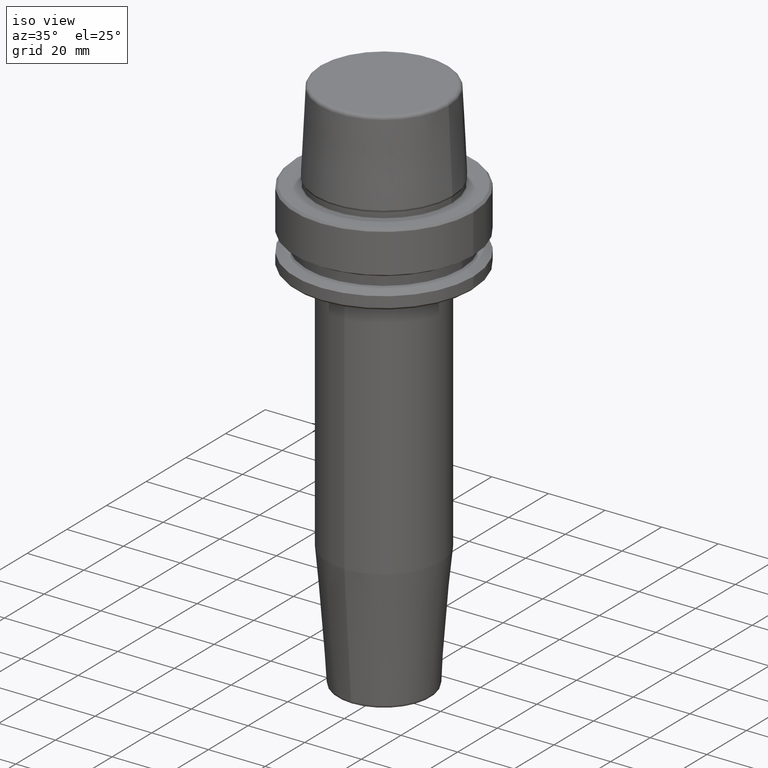
[diagram: clean part render]
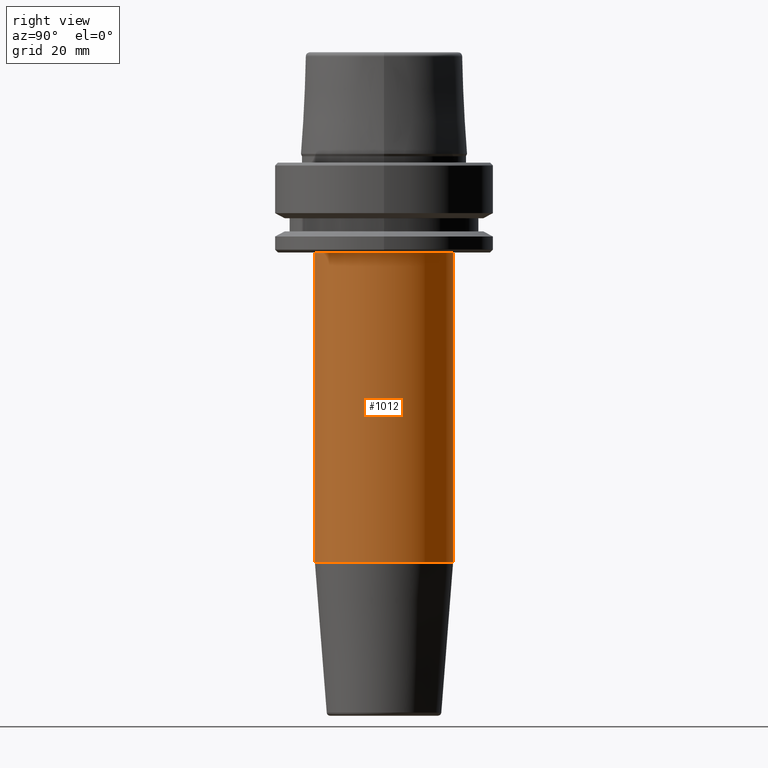
[diagram: tour spotlight — one face highlighted and labeled with its STEP entity id]
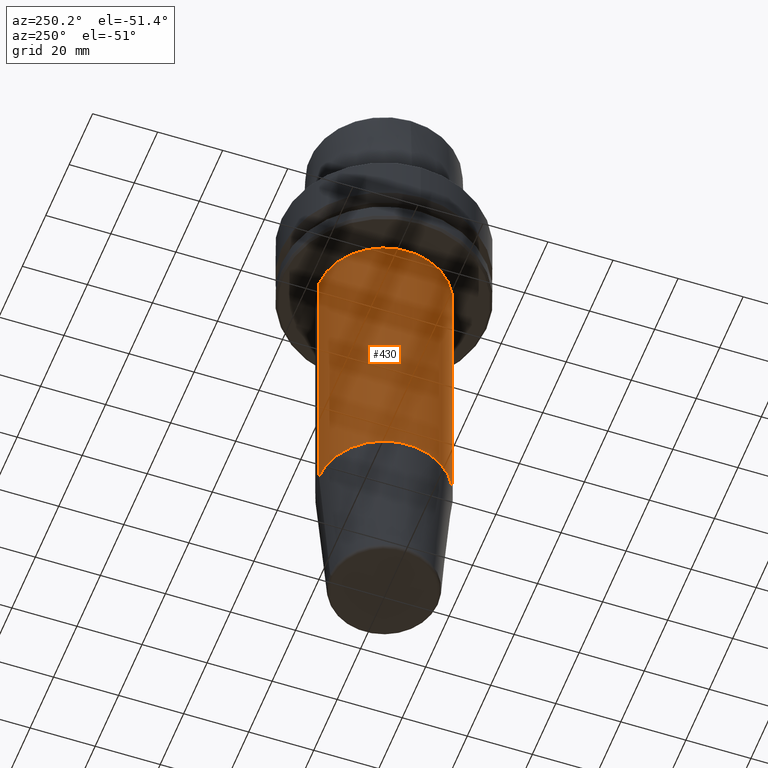
[diagram: tour spotlight — one face highlighted and labeled with its STEP entity id]
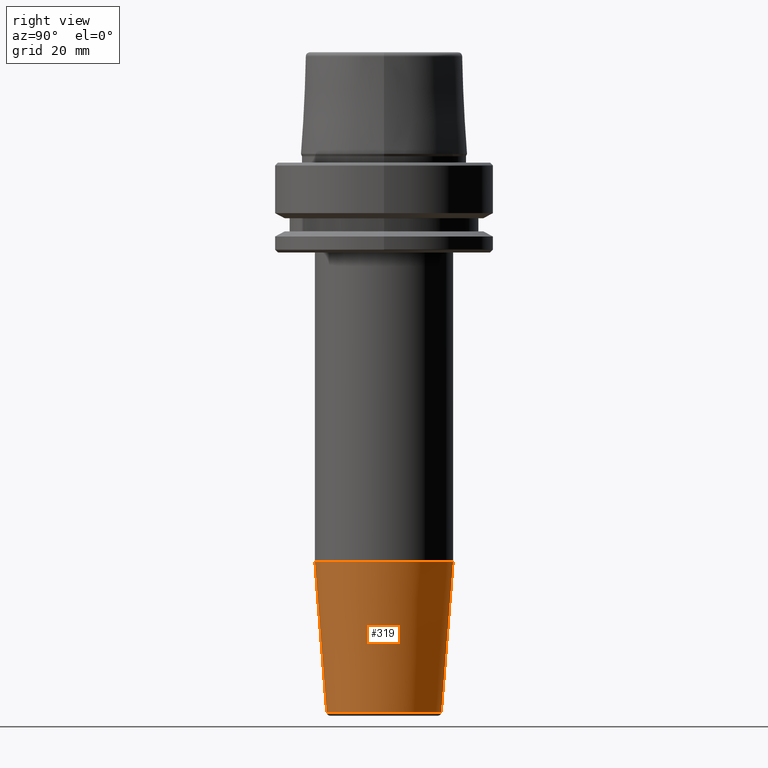
[diagram: tour spotlight — one face highlighted and labeled with its STEP entity id]
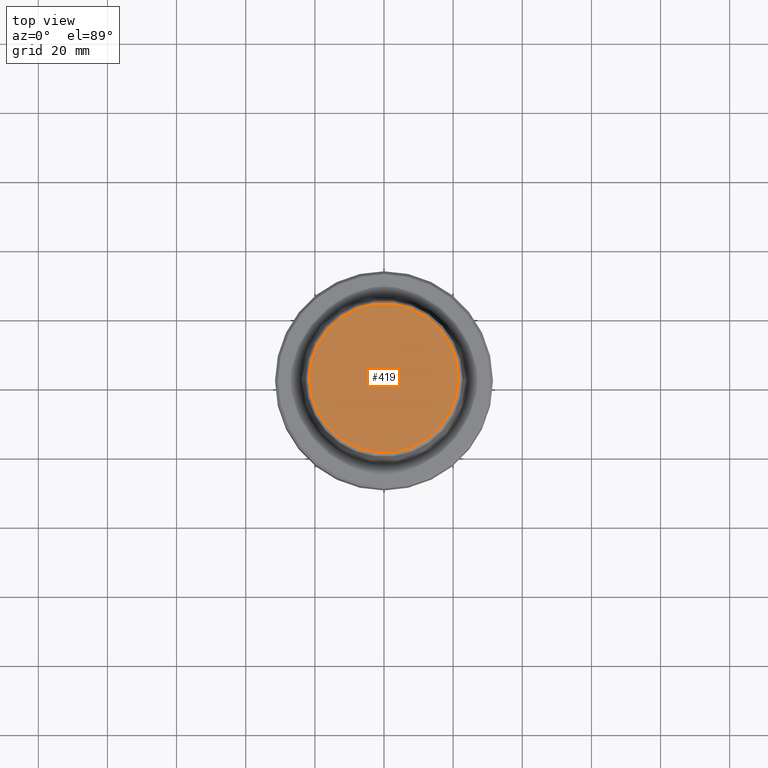
[diagram: tour spotlight — one face highlighted and labeled with its STEP entity id]
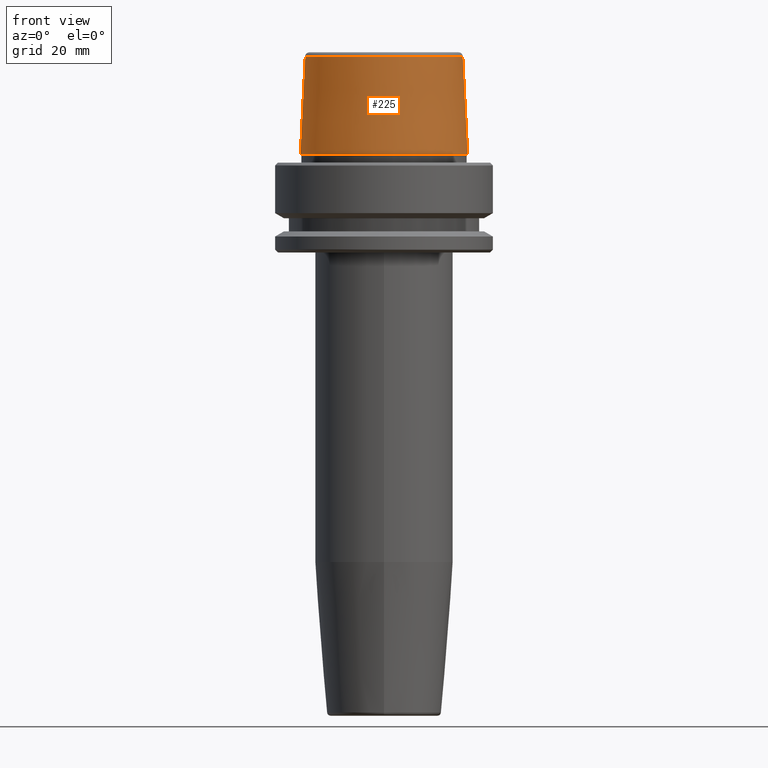
[diagram: tour spotlight — one face highlighted and labeled with its STEP entity id]
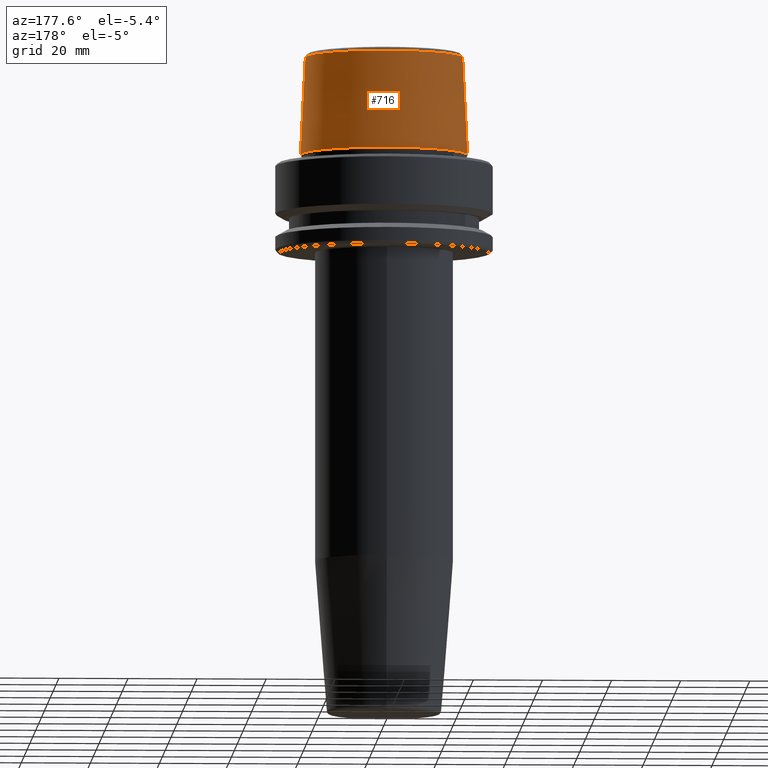
[diagram: tour spotlight — one face highlighted and labeled with its STEP entity id]
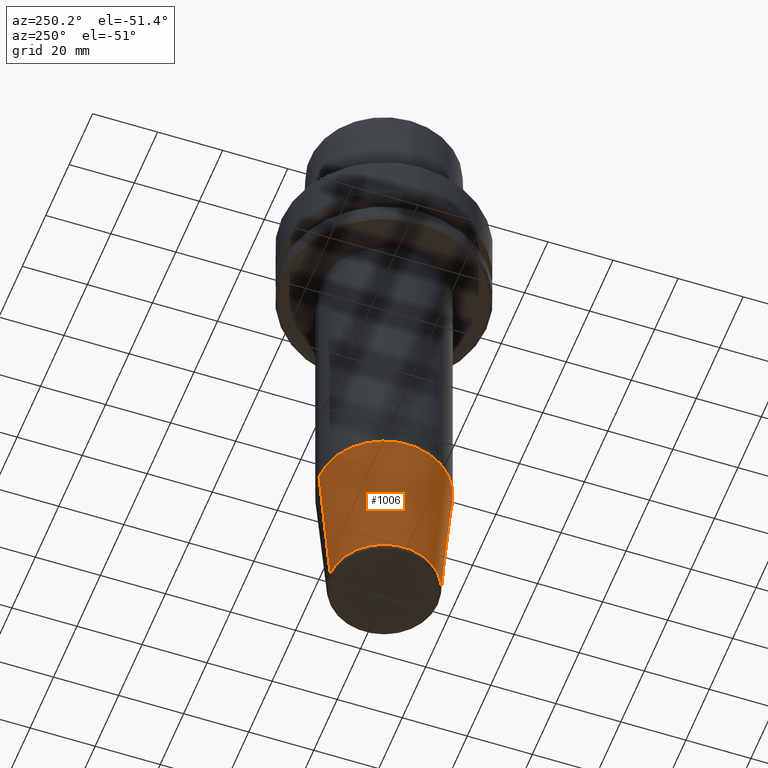
[diagram: tour spotlight — one face highlighted and labeled with its STEP entity id]
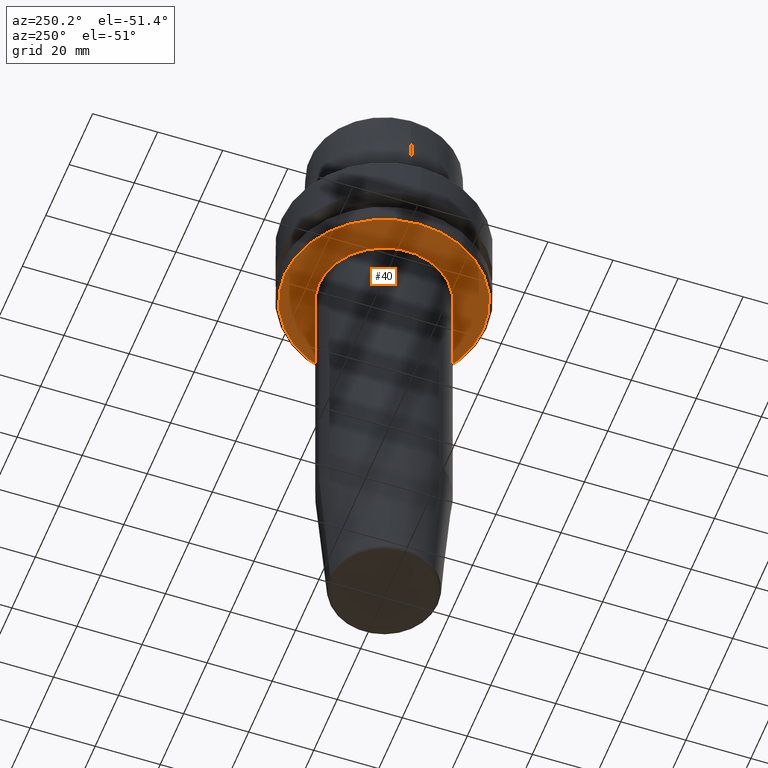
[diagram: tour spotlight — one face highlighted and labeled with its STEP entity id]
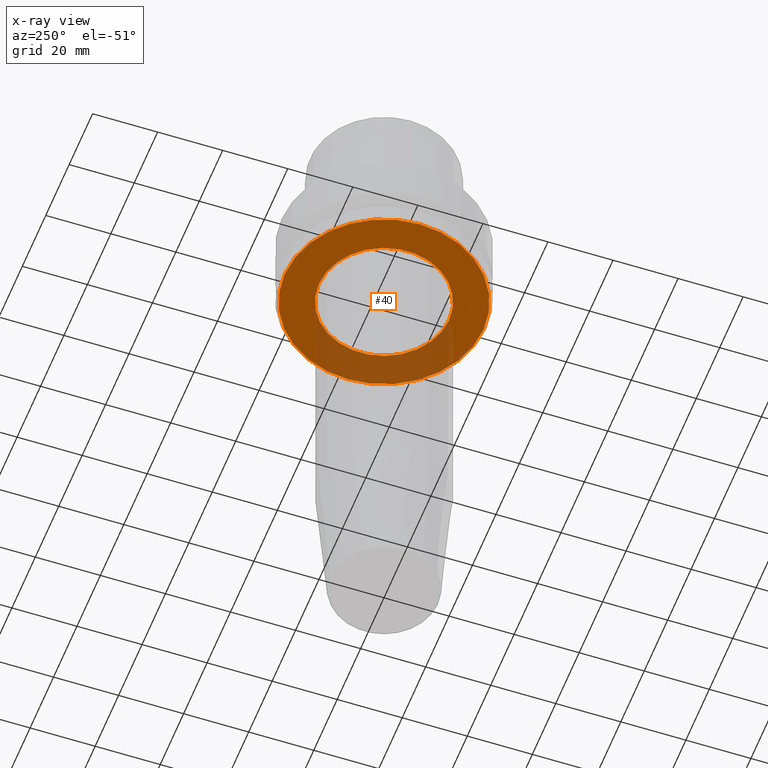
[diagram: x-ray of the same camera — body ghosted, this tour face saturated]
A machine part: a face-by-face anatomy tour. The part has 46 B-rep faces; the first image is the clean iso view, then the 8 largest visible faces are spotlighted one at a time (largest first), each with its STEP entity span.

Face 1 — right view, entity #1012. In plain terms, the highlighted cylindrical surface (partial cylindrical patch) has radius 20 mm, axis along (-0, 0, -1).
Definition (entity closure, byte-faithful):
#44 = CIRCLE ( 'NONE', #508, 19.99999999999997900 ) ;
#74 = CYLINDRICAL_SURFACE ( 'NONE', #316, 19.99999999999998200 ) ;
#152 = DIRECTION ( 'NONE',  ( -0.0000000000000000000, 3.655662087007025400E-017, -1.000000000000000000 ) ) ;
#168 = EDGE_LOOP ( 'NONE', ( #851, #558, #910, #924 ) ) ;
#208 = DIRECTION ( 'NONE',  ( 1.000000000000000000, 0.0000000000000000000, 0.0000000000000000000 ) ) ;
#217 = VECTOR ( 'NONE', #805, 1000.000000000000000 ) ;
#224 = CARTESIAN_POINT ( 'NONE',  ( 0.0000000000000000000, 19.99999999999998600, -160.0000000000000000 ) ) ;
#238 = DIRECTION ( 'NONE',  ( 0.0000000000000000000, 1.000000000000000000, 0.0000000000000000000 ) ) ;
#242 = CARTESIAN_POINT ( 'NONE',  ( 2.449293598294704100E-015, 19.99999999999998200, -115.5282834233843100 ) ) ;
#316 = AXIS2_PLACEMENT_3D ( 'NONE', #647, #152, #238 ) ;
#384 = CARTESIAN_POINT ( 'NONE',  ( 0.0000000000000000000, 0.0000000000000000000, -25.99999999999999600 ) ) ;
#396 = EDGE_CURVE ( 'NONE', #1025, #399, #928, .T. ) ;
#399 = VERTEX_POINT ( 'NONE', #912 ) ;
#408 = DIRECTION ( 'NONE',  ( -0.0000000000000000000, 3.655662087007025400E-017, -1.000000000000000000 ) ) ;
#508 = AXIS2_PLACEMENT_3D ( 'NONE', #549, #1225, #659 ) ;
#549 = CARTESIAN_POINT ( 'NONE',  ( 0.0000000000000000000, 3.272851514256856000E-015, -115.5282834233843100 ) ) ;
#558 = ORIENTED_EDGE ( 'NONE', *, *, #707, .T. ) ;
#647 = CARTESIAN_POINT ( 'NONE',  ( 0.0000000000000000000, 4.898587196589414600E-015, -160.0000000000000000 ) ) ;
#659 = DIRECTION ( 'NONE',  ( 0.0000000000000000000, 1.000000000000000000, 0.0000000000000000000 ) ) ;
#670 = VECTOR ( 'NONE', #408, 1000.000000000000000 ) ;
#686 = VERTEX_POINT ( 'NONE', #242 ) ;
#707 = EDGE_CURVE ( 'NONE', #399, #804, #926, .T. ) ;
#729 = CARTESIAN_POINT ( 'NONE',  ( 2.449293598294704500E-015, -19.99999999999997900, -160.0000000000000000 ) ) ;
#759 = AXIS2_PLACEMENT_3D ( 'NONE', #384, #888, #208 ) ;
#804 = VERTEX_POINT ( 'NONE', #1092 ) ;
#805 = DIRECTION ( 'NONE',  ( -0.0000000000000000000, 3.655662087007025400E-017, -1.000000000000000000 ) ) ;
#851 = ORIENTED_EDGE ( 'NONE', *, *, #396, .T. ) ;
#878 = FACE_OUTER_BOUND ( 'NONE', #168, .T. ) ;
#888 = DIRECTION ( 'NONE',  ( 0.0000000000000000000, 0.0000000000000000000, -1.000000000000000000 ) ) ;
#898 = EDGE_CURVE ( 'NONE', #1025, #686, #1005, .T. ) ;
#910 = ORIENTED_EDGE ( 'NONE', *, *, #1053, .F. ) ;
#912 = CARTESIAN_POINT ( 'NONE',  ( 2.449293598294704500E-015, -19.99999999999998200, -25.99999999999999600 ) ) ;
#924 = ORIENTED_EDGE ( 'NONE', *, *, #898, .F. ) ;
#926 = LINE ( 'NONE', #729, #670 ) ;
#928 = CIRCLE ( 'NONE', #759, 19.99999999999998200 ) ;
#938 = CARTESIAN_POINT ( 'NONE',  ( 0.0000000000000000000, 19.99999999999998200, -25.99999999999999600 ) ) ;
#1005 = LINE ( 'NONE', #224, #217 ) ;
#1012 = ADVANCED_FACE ( 'NONE', ( #878 ), #74, .T. ) ;
#1025 = VERTEX_POINT ( 'NONE', #938 ) ;
#1053 = EDGE_CURVE ( 'NONE', #686, #804, #44, .T. ) ;
#1092 = CARTESIAN_POINT ( 'NONE',  ( 0.0000000000000000000, -19.99999999999997500, -115.5282834233843100 ) ) ;
#1225 = DIRECTION ( 'NONE',  ( -0.0000000000000000000, 3.655662087007025400E-017, -1.000000000000000000 ) ) ;

Face 2 — auxiliary view, entity #430. In plain terms, the highlighted cylindrical surface (partial cylindrical patch) has radius 20 mm, axis along (-0, 0, -1).
Definition (entity closure, byte-faithful):
#18 = AXIS2_PLACEMENT_3D ( 'NONE', #853, #1253, #468 ) ;
#111 = CARTESIAN_POINT ( 'NONE',  ( 0.0000000000000000000, 0.0000000000000000000, -25.99999999999999600 ) ) ;
#217 = VECTOR ( 'NONE', #805, 1000.000000000000000 ) ;
#224 = CARTESIAN_POINT ( 'NONE',  ( 0.0000000000000000000, 19.99999999999998600, -160.0000000000000000 ) ) ;
#242 = CARTESIAN_POINT ( 'NONE',  ( 2.449293598294704100E-015, 19.99999999999998200, -115.5282834233843100 ) ) ;
#270 = AXIS2_PLACEMENT_3D ( 'NONE', #892, #300, #992 ) ;
#280 = EDGE_CURVE ( 'NONE', #399, #1025, #742, .T. ) ;
#300 = DIRECTION ( 'NONE',  ( -0.0000000000000000000, 3.655662087007025400E-017, -1.000000000000000000 ) ) ;
#399 = VERTEX_POINT ( 'NONE', #912 ) ;
#405 = CIRCLE ( 'NONE', #270, 19.99999999999997900 ) ;
#408 = DIRECTION ( 'NONE',  ( -0.0000000000000000000, 3.655662087007025400E-017, -1.000000000000000000 ) ) ;
#420 = AXIS2_PLACEMENT_3D ( 'NONE', #111, #1213, #728 ) ;
#430 = ADVANCED_FACE ( 'NONE', ( #822 ), #562, .T. ) ;
#468 = DIRECTION ( 'NONE',  ( 0.0000000000000000000, 1.000000000000000000, 0.0000000000000000000 ) ) ;
#507 = ORIENTED_EDGE ( 'NONE', *, *, #280, .T. ) ;
#562 = CYLINDRICAL_SURFACE ( 'NONE', #18, 19.99999999999998200 ) ;
#670 = VECTOR ( 'NONE', #408, 1000.000000000000000 ) ;
#686 = VERTEX_POINT ( 'NONE', #242 ) ;
#707 = EDGE_CURVE ( 'NONE', #399, #804, #926, .T. ) ;
#728 = DIRECTION ( 'NONE',  ( 1.000000000000000000, 0.0000000000000000000, 0.0000000000000000000 ) ) ;
#729 = CARTESIAN_POINT ( 'NONE',  ( 2.449293598294704500E-015, -19.99999999999997900, -160.0000000000000000 ) ) ;
#742 = CIRCLE ( 'NONE', #420, 19.99999999999998200 ) ;
#762 = EDGE_CURVE ( 'NONE', #804, #686, #405, .T. ) ;
#804 = VERTEX_POINT ( 'NONE', #1092 ) ;
#805 = DIRECTION ( 'NONE',  ( -0.0000000000000000000, 3.655662087007025400E-017, -1.000000000000000000 ) ) ;
#822 = FACE_OUTER_BOUND ( 'NONE', #900, .T. ) ;
#853 = CARTESIAN_POINT ( 'NONE',  ( 0.0000000000000000000, 4.898587196589414600E-015, -160.0000000000000000 ) ) ;
#892 = CARTESIAN_POINT ( 'NONE',  ( 0.0000000000000000000, 3.272851514256856000E-015, -115.5282834233843100 ) ) ;
#898 = EDGE_CURVE ( 'NONE', #1025, #686, #1005, .T. ) ;
#900 = EDGE_LOOP ( 'NONE', ( #1149, #507, #931, #1073 ) ) ;
#912 = CARTESIAN_POINT ( 'NONE',  ( 2.449293598294704500E-015, -19.99999999999998200, -25.99999999999999600 ) ) ;
#926 = LINE ( 'NONE', #729, #670 ) ;
#931 = ORIENTED_EDGE ( 'NONE', *, *, #898, .T. ) ;
#938 = CARTESIAN_POINT ( 'NONE',  ( 0.0000000000000000000, 19.99999999999998200, -25.99999999999999600 ) ) ;
#992 = DIRECTION ( 'NONE',  ( 0.0000000000000000000, 1.000000000000000000, 0.0000000000000000000 ) ) ;
#1005 = LINE ( 'NONE', #224, #217 ) ;
#1025 = VERTEX_POINT ( 'NONE', #938 ) ;
#1073 = ORIENTED_EDGE ( 'NONE', *, *, #762, .F. ) ;
#1092 = CARTESIAN_POINT ( 'NONE',  ( 0.0000000000000000000, -19.99999999999997500, -115.5282834233843100 ) ) ;
#1149 = ORIENTED_EDGE ( 'NONE', *, *, #707, .F. ) ;
#1213 = DIRECTION ( 'NONE',  ( 0.0000000000000000000, 0.0000000000000000000, -1.000000000000000000 ) ) ;
#1253 = DIRECTION ( 'NONE',  ( -0.0000000000000000000, 3.655662087007025400E-017, -1.000000000000000000 ) ) ;

Face 3 — right view, entity #319. In plain terms, the highlighted conical surface has half-angle 4.5 deg.
Definition (entity closure, byte-faithful):
#1 = VERTEX_POINT ( 'NONE', #1095 ) ;
#44 = CIRCLE ( 'NONE', #508, 19.99999999999997900 ) ;
#126 = ORIENTED_EDGE ( 'NONE', *, *, #1053, .T. ) ;
#156 = DIRECTION ( 'NONE',  ( 9.608468044709153600E-018, 0.07845909572783711600, 0.9969173337331285200 ) ) ;
#159 = ORIENTED_EDGE ( 'NONE', *, *, #1074, .F. ) ;
#242 = CARTESIAN_POINT ( 'NONE',  ( 2.449293598294704100E-015, 19.99999999999998200, -115.5282834233843100 ) ) ;
#319 = ADVANCED_FACE ( 'NONE', ( #1236 ), #930, .T. ) ;
#345 = CARTESIAN_POINT ( 'NONE',  ( 2.029549195093063300E-015, -16.57252684207490700, -159.0784590957278500 ) ) ;
#355 = DIRECTION ( 'NONE',  ( -0.0000000000000000000, 3.655662087007025400E-017, -1.000000000000000000 ) ) ;
#472 = DIRECTION ( 'NONE',  ( 0.0000000000000000000, -3.655662087007025400E-017, 1.000000000000000000 ) ) ;
#508 = AXIS2_PLACEMENT_3D ( 'NONE', #549, #1225, #659 ) ;
#524 = VECTOR ( 'NONE', #156, 1000.000000000000100 ) ;
#531 = ORIENTED_EDGE ( 'NONE', *, *, #1056, .T. ) ;
#549 = CARTESIAN_POINT ( 'NONE',  ( 0.0000000000000000000, 3.272851514256856000E-015, -115.5282834233843100 ) ) ;
#586 = AXIS2_PLACEMENT_3D ( 'NONE', #947, #355, #1044 ) ;
#659 = DIRECTION ( 'NONE',  ( 0.0000000000000000000, 1.000000000000000000, 0.0000000000000000000 ) ) ;
#661 = LINE ( 'NONE', #1135, #524 ) ;
#686 = VERTEX_POINT ( 'NONE', #242 ) ;
#745 = AXIS2_PLACEMENT_3D ( 'NONE', #1111, #472, #1180 ) ;
#774 = CARTESIAN_POINT ( 'NONE',  ( 0.0000000000000000000, -19.99999999999997500, -115.5282834233843100 ) ) ;
#804 = VERTEX_POINT ( 'NONE', #1092 ) ;
#873 = DIRECTION ( 'NONE',  ( 0.0000000000000000000, -0.07845909572783718600, 0.9969173337331285200 ) ) ;
#930 = CONICAL_SURFACE ( 'NONE', #745, 19.99999999999997900, 0.07853981633973701500 ) ;
#947 = CARTESIAN_POINT ( 'NONE',  ( 0.0000000000000000000, 4.864898775135675400E-015, -159.0784590957278500 ) ) ;
#948 = EDGE_LOOP ( 'NONE', ( #159, #531, #126, #1089 ) ) ;
#1040 = VERTEX_POINT ( 'NONE', #345 ) ;
#1044 = DIRECTION ( 'NONE',  ( 0.0000000000000000000, 1.000000000000000000, 0.0000000000000000000 ) ) ;
#1049 = CIRCLE ( 'NONE', #586, 16.57252684207491100 ) ;
#1053 = EDGE_CURVE ( 'NONE', #686, #804, #44, .T. ) ;
#1056 = EDGE_CURVE ( 'NONE', #1, #686, #661, .T. ) ;
#1074 = EDGE_CURVE ( 'NONE', #1, #1040, #1049, .T. ) ;
#1089 = ORIENTED_EDGE ( 'NONE', *, *, #1222, .F. ) ;
#1092 = CARTESIAN_POINT ( 'NONE',  ( 0.0000000000000000000, -19.99999999999997500, -115.5282834233843100 ) ) ;
#1095 = CARTESIAN_POINT ( 'NONE',  ( 0.0000000000000000000, 16.57252684207491800, -159.0784590957278500 ) ) ;
#1111 = CARTESIAN_POINT ( 'NONE',  ( 0.0000000000000000000, 3.272851514256856000E-015, -115.5282834233843100 ) ) ;
#1135 = CARTESIAN_POINT ( 'NONE',  ( 2.449293598294704100E-015, 19.99999999999998200, -115.5282834233843100 ) ) ;
#1180 = DIRECTION ( 'NONE',  ( 0.0000000000000000000, -1.000000000000000000, 0.0000000000000000000 ) ) ;
#1222 = EDGE_CURVE ( 'NONE', #1040, #804, #1256, .T. ) ;
#1225 = DIRECTION ( 'NONE',  ( -0.0000000000000000000, 3.655662087007025400E-017, -1.000000000000000000 ) ) ;
#1229 = VECTOR ( 'NONE', #873, 1000.000000000000100 ) ;
#1236 = FACE_OUTER_BOUND ( 'NONE', #948, .T. ) ;
#1256 = LINE ( 'NONE', #774, #1229 ) ;

Face 4 — top view, entity #419. In plain terms, the highlighted planar face has unit normal (0, 0, -1).
Definition (entity closure, byte-faithful):
#13 = DIRECTION ( 'NONE',  ( -1.000000000000000000, 0.0000000000000000000, -0.0000000000000000000 ) ) ;
#54 = CARTESIAN_POINT ( 'NONE',  ( -21.58108272732117100, 2.716307157494421400E-015, 31.89999999999999900 ) ) ;
#63 = ORIENTED_EDGE ( 'NONE', *, *, #1170, .T. ) ;
#67 = CIRCLE ( 'NONE', #1144, 21.58108272732117100 ) ;
#109 = CARTESIAN_POINT ( 'NONE',  ( 0.0000000000000000000, 0.0000000000000000000, 31.89999999999999900 ) ) ;
#201 = VERTEX_POINT ( 'NONE', #1183 ) ;
#261 = CIRCLE ( 'NONE', #959, 21.58108272732117100 ) ;
#269 = DIRECTION ( 'NONE',  ( -0.0000000000000000000, -0.0000000000000000000, 1.000000000000000000 ) ) ;
#363 = EDGE_LOOP ( 'NONE', ( #63, #714 ) ) ;
#419 = ADVANCED_FACE ( 'NONE', ( #544 ), #557, .F. ) ;
#422 = EDGE_CURVE ( 'NONE', #1007, #201, #261, .T. ) ;
#429 = DIRECTION ( 'NONE',  ( 0.0000000000000000000, 0.0000000000000000000, -1.000000000000000000 ) ) ;
#467 = DIRECTION ( 'NONE',  ( -0.0000000000000000000, -0.0000000000000000000, 1.000000000000000000 ) ) ;
#544 = FACE_OUTER_BOUND ( 'NONE', #363, .T. ) ;
#557 = PLANE ( 'NONE',  #1026 ) ;
#568 = CARTESIAN_POINT ( 'NONE',  ( 0.0000000000000000000, 0.0000000000000000000, 31.89999999999999900 ) ) ;
#714 = ORIENTED_EDGE ( 'NONE', *, *, #422, .T. ) ;
#791 = DIRECTION ( 'NONE',  ( 1.000000000000000000, 0.0000000000000000000, 0.0000000000000000000 ) ) ;
#959 = AXIS2_PLACEMENT_3D ( 'NONE', #568, #269, #791 ) ;
#1007 = VERTEX_POINT ( 'NONE', #54 ) ;
#1026 = AXIS2_PLACEMENT_3D ( 'NONE', #109, #429, #13 ) ;
#1057 = CARTESIAN_POINT ( 'NONE',  ( 0.0000000000000000000, 0.0000000000000000000, 31.89999999999999900 ) ) ;
#1144 = AXIS2_PLACEMENT_3D ( 'NONE', #1057, #467, #1153 ) ;
#1153 = DIRECTION ( 'NONE',  ( 1.000000000000000000, 0.0000000000000000000, 0.0000000000000000000 ) ) ;
#1170 = EDGE_CURVE ( 'NONE', #201, #1007, #67, .T. ) ;
#1183 = CARTESIAN_POINT ( 'NONE',  ( 21.58108272732117100, 0.0000000000000000000, 31.89999999999999900 ) ) ;

Face 5 — front view, entity #225. In plain terms, the highlighted conical surface has half-angle 2.868 deg.
Definition (entity closure, byte-faithful):
#23 = CONICAL_SURFACE ( 'NONE', #158, 24.19537568275369200, 0.05005701257455997400 ) ;
#53 = DIRECTION ( 'NONE',  ( -0.05003611051310804400, 0.0000000000000000000, -0.9987474093306675200 ) ) ;
#91 = LINE ( 'NONE', #940, #150 ) ;
#92 = VERTEX_POINT ( 'NONE', #199 ) ;
#150 = VECTOR ( 'NONE', #474, 1000.000000000000200 ) ;
#158 = AXIS2_PLACEMENT_3D ( 'NONE', #733, #462, #655 ) ;
#199 = CARTESIAN_POINT ( 'NONE',  ( -24.19537568275369200, 2.963078938405201500E-015, 2.500000000000002200 ) ) ;
#212 = ORIENTED_EDGE ( 'NONE', *, *, #1099, .F. ) ;
#225 = ADVANCED_FACE ( 'NONE', ( #756 ), #23, .T. ) ;
#232 = EDGE_LOOP ( 'NONE', ( #971, #212, #866, #505 ) ) ;
#258 = CIRCLE ( 'NONE', #657, 22.77957961851797100 ) ;
#348 = VERTEX_POINT ( 'NONE', #666 ) ;
#371 = EDGE_CURVE ( 'NONE', #1018, #754, #91, .T. ) ;
#462 = DIRECTION ( 'NONE',  ( 0.0000000000000000000, 0.0000000000000000000, -1.000000000000000000 ) ) ;
#474 = DIRECTION ( 'NONE',  ( 0.05003611051310804400, 6.127656258166099700E-018, -0.9987474093306675200 ) ) ;
#494 = CARTESIAN_POINT ( 'NONE',  ( 24.19537568275369200, 0.0000000000000000000, 2.500000000000002200 ) ) ;
#505 = ORIENTED_EDGE ( 'NONE', *, *, #572, .T. ) ;
#553 = CARTESIAN_POINT ( 'NONE',  ( 0.0000000000000000000, 0.0000000000000000000, 30.76004333261571900 ) ) ;
#572 = EDGE_CURVE ( 'NONE', #92, #754, #1165, .T. ) ;
#646 = EDGE_CURVE ( 'NONE', #348, #92, #1068, .T. ) ;
#655 = DIRECTION ( 'NONE',  ( -1.000000000000000000, 0.0000000000000000000, 0.0000000000000000000 ) ) ;
#657 = AXIS2_PLACEMENT_3D ( 'NONE', #553, #1227, #662 ) ;
#662 = DIRECTION ( 'NONE',  ( 1.000000000000000000, 0.0000000000000000000, 0.0000000000000000000 ) ) ;
#666 = CARTESIAN_POINT ( 'NONE',  ( -22.77957961851797100, 0.0000000000000000000, 30.76004333261571900 ) ) ;
#674 = AXIS2_PLACEMENT_3D ( 'NONE', #763, #682, #1228 ) ;
#682 = DIRECTION ( 'NONE',  ( -0.0000000000000000000, -0.0000000000000000000, 1.000000000000000000 ) ) ;
#711 = VECTOR ( 'NONE', #53, 1000.000000000000200 ) ;
#733 = CARTESIAN_POINT ( 'NONE',  ( 0.0000000000000000000, 0.0000000000000000000, 2.500000000000002200 ) ) ;
#754 = VERTEX_POINT ( 'NONE', #494 ) ;
#756 = FACE_OUTER_BOUND ( 'NONE', #232, .T. ) ;
#763 = CARTESIAN_POINT ( 'NONE',  ( 0.0000000000000000000, 0.0000000000000000000, 2.500000000000002200 ) ) ;
#866 = ORIENTED_EDGE ( 'NONE', *, *, #646, .T. ) ;
#940 = CARTESIAN_POINT ( 'NONE',  ( 24.19537568275369200, 2.963078938405201500E-015, 2.500000000000002200 ) ) ;
#971 = ORIENTED_EDGE ( 'NONE', *, *, #371, .F. ) ;
#1018 = VERTEX_POINT ( 'NONE', #1130 ) ;
#1068 = LINE ( 'NONE', #1098, #711 ) ;
#1098 = CARTESIAN_POINT ( 'NONE',  ( -24.19537568275369200, 0.0000000000000000000, 2.500000000000002200 ) ) ;
#1099 = EDGE_CURVE ( 'NONE', #348, #1018, #258, .T. ) ;
#1130 = CARTESIAN_POINT ( 'NONE',  ( 22.77957961851797100, 2.876386432489616700E-015, 30.76004333261571900 ) ) ;
#1165 = CIRCLE ( 'NONE', #674, 24.19537568275369200 ) ;
#1227 = DIRECTION ( 'NONE',  ( -0.0000000000000000000, -0.0000000000000000000, 1.000000000000000000 ) ) ;
#1228 = DIRECTION ( 'NONE',  ( 1.000000000000000000, 0.0000000000000000000, 0.0000000000000000000 ) ) ;

Face 6 — auxiliary view, entity #716. In plain terms, the highlighted conical surface has half-angle 2.868 deg.
Definition (entity closure, byte-faithful):
#19 = DIRECTION ( 'NONE',  ( 0.0000000000000000000, 0.0000000000000000000, -1.000000000000000000 ) ) ;
#32 = DIRECTION ( 'NONE',  ( -1.000000000000000000, 0.0000000000000000000, 0.0000000000000000000 ) ) ;
#33 = DIRECTION ( 'NONE',  ( -0.0000000000000000000, -0.0000000000000000000, 1.000000000000000000 ) ) ;
#53 = DIRECTION ( 'NONE',  ( -0.05003611051310804400, 0.0000000000000000000, -0.9987474093306675200 ) ) ;
#84 = AXIS2_PLACEMENT_3D ( 'NONE', #1189, #19, #32 ) ;
#91 = LINE ( 'NONE', #940, #150 ) ;
#92 = VERTEX_POINT ( 'NONE', #199 ) ;
#114 = EDGE_CURVE ( 'NONE', #1018, #348, #257, .T. ) ;
#150 = VECTOR ( 'NONE', #474, 1000.000000000000200 ) ;
#199 = CARTESIAN_POINT ( 'NONE',  ( -24.19537568275369200, 2.963078938405201500E-015, 2.500000000000002200 ) ) ;
#251 = CARTESIAN_POINT ( 'NONE',  ( 0.0000000000000000000, 0.0000000000000000000, 30.76004333261571900 ) ) ;
#257 = CIRCLE ( 'NONE', #654, 22.77957961851797100 ) ;
#305 = ORIENTED_EDGE ( 'NONE', *, *, #371, .T. ) ;
#348 = VERTEX_POINT ( 'NONE', #666 ) ;
#371 = EDGE_CURVE ( 'NONE', #1018, #754, #91, .T. ) ;
#474 = DIRECTION ( 'NONE',  ( 0.05003611051310804400, 6.127656258166099700E-018, -0.9987474093306675200 ) ) ;
#494 = CARTESIAN_POINT ( 'NONE',  ( 24.19537568275369200, 0.0000000000000000000, 2.500000000000002200 ) ) ;
#565 = CARTESIAN_POINT ( 'NONE',  ( 0.0000000000000000000, 0.0000000000000000000, 2.500000000000002200 ) ) ;
#616 = ORIENTED_EDGE ( 'NONE', *, *, #114, .F. ) ;
#622 = CIRCLE ( 'NONE', #750, 24.19537568275369200 ) ;
#646 = EDGE_CURVE ( 'NONE', #348, #92, #1068, .T. ) ;
#654 = AXIS2_PLACEMENT_3D ( 'NONE', #251, #33, #782 ) ;
#666 = CARTESIAN_POINT ( 'NONE',  ( -22.77957961851797100, 0.0000000000000000000, 30.76004333261571900 ) ) ;
#667 = DIRECTION ( 'NONE',  ( 1.000000000000000000, 0.0000000000000000000, 0.0000000000000000000 ) ) ;
#711 = VECTOR ( 'NONE', #53, 1000.000000000000200 ) ;
#716 = ADVANCED_FACE ( 'NONE', ( #897 ), #1126, .T. ) ;
#750 = AXIS2_PLACEMENT_3D ( 'NONE', #565, #1234, #667 ) ;
#754 = VERTEX_POINT ( 'NONE', #494 ) ;
#782 = DIRECTION ( 'NONE',  ( 1.000000000000000000, 0.0000000000000000000, 0.0000000000000000000 ) ) ;
#897 = FACE_OUTER_BOUND ( 'NONE', #1137, .T. ) ;
#940 = CARTESIAN_POINT ( 'NONE',  ( 24.19537568275369200, 2.963078938405201500E-015, 2.500000000000002200 ) ) ;
#960 = ORIENTED_EDGE ( 'NONE', *, *, #646, .F. ) ;
#1018 = VERTEX_POINT ( 'NONE', #1130 ) ;
#1068 = LINE ( 'NONE', #1098, #711 ) ;
#1098 = CARTESIAN_POINT ( 'NONE',  ( -24.19537568275369200, 0.0000000000000000000, 2.500000000000002200 ) ) ;
#1125 = EDGE_CURVE ( 'NONE', #754, #92, #622, .T. ) ;
#1126 = CONICAL_SURFACE ( 'NONE', #84, 24.19537568275369200, 0.05005701257455997400 ) ;
#1130 = CARTESIAN_POINT ( 'NONE',  ( 22.77957961851797100, 2.876386432489616700E-015, 30.76004333261571900 ) ) ;
#1137 = EDGE_LOOP ( 'NONE', ( #616, #305, #1210, #960 ) ) ;
#1189 = CARTESIAN_POINT ( 'NONE',  ( 0.0000000000000000000, 0.0000000000000000000, 2.500000000000002200 ) ) ;
#1210 = ORIENTED_EDGE ( 'NONE', *, *, #1125, .T. ) ;
#1234 = DIRECTION ( 'NONE',  ( -0.0000000000000000000, -0.0000000000000000000, 1.000000000000000000 ) ) ;

Face 7 — auxiliary view, entity #1006. In plain terms, the highlighted conical surface has half-angle 4.5 deg.
Definition (entity closure, byte-faithful):
#1 = VERTEX_POINT ( 'NONE', #1095 ) ;
#47 = CARTESIAN_POINT ( 'NONE',  ( 0.0000000000000000000, 4.864898775135675400E-015, -159.0784590957278500 ) ) ;
#128 = AXIS2_PLACEMENT_3D ( 'NONE', #536, #638, #1212 ) ;
#141 = DIRECTION ( 'NONE',  ( 0.0000000000000000000, 1.000000000000000000, 0.0000000000000000000 ) ) ;
#156 = DIRECTION ( 'NONE',  ( 9.608468044709153600E-018, 0.07845909572783711600, 0.9969173337331285200 ) ) ;
#186 = CIRCLE ( 'NONE', #1186, 16.57252684207491100 ) ;
#242 = CARTESIAN_POINT ( 'NONE',  ( 2.449293598294704100E-015, 19.99999999999998200, -115.5282834233843100 ) ) ;
#270 = AXIS2_PLACEMENT_3D ( 'NONE', #892, #300, #992 ) ;
#300 = DIRECTION ( 'NONE',  ( -0.0000000000000000000, 3.655662087007025400E-017, -1.000000000000000000 ) ) ;
#342 = EDGE_LOOP ( 'NONE', ( #1239, #1047, #744, #1112 ) ) ;
#345 = CARTESIAN_POINT ( 'NONE',  ( 2.029549195093063300E-015, -16.57252684207490700, -159.0784590957278500 ) ) ;
#405 = CIRCLE ( 'NONE', #270, 19.99999999999997900 ) ;
#524 = VECTOR ( 'NONE', #156, 1000.000000000000100 ) ;
#536 = CARTESIAN_POINT ( 'NONE',  ( 0.0000000000000000000, 3.272851514256856000E-015, -115.5282834233843100 ) ) ;
#594 = FACE_OUTER_BOUND ( 'NONE', #342, .T. ) ;
#638 = DIRECTION ( 'NONE',  ( 0.0000000000000000000, -3.655662087007025400E-017, 1.000000000000000000 ) ) ;
#661 = LINE ( 'NONE', #1135, #524 ) ;
#686 = VERTEX_POINT ( 'NONE', #242 ) ;
#723 = DIRECTION ( 'NONE',  ( -0.0000000000000000000, 3.655662087007025400E-017, -1.000000000000000000 ) ) ;
#744 = ORIENTED_EDGE ( 'NONE', *, *, #1222, .T. ) ;
#762 = EDGE_CURVE ( 'NONE', #804, #686, #405, .T. ) ;
#774 = CARTESIAN_POINT ( 'NONE',  ( 0.0000000000000000000, -19.99999999999997500, -115.5282834233843100 ) ) ;
#804 = VERTEX_POINT ( 'NONE', #1092 ) ;
#820 = CONICAL_SURFACE ( 'NONE', #128, 19.99999999999997900, 0.07853981633973701500 ) ;
#873 = DIRECTION ( 'NONE',  ( 0.0000000000000000000, -0.07845909572783718600, 0.9969173337331285200 ) ) ;
#892 = CARTESIAN_POINT ( 'NONE',  ( 0.0000000000000000000, 3.272851514256856000E-015, -115.5282834233843100 ) ) ;
#927 = EDGE_CURVE ( 'NONE', #1040, #1, #186, .T. ) ;
#992 = DIRECTION ( 'NONE',  ( 0.0000000000000000000, 1.000000000000000000, 0.0000000000000000000 ) ) ;
#1006 = ADVANCED_FACE ( 'NONE', ( #594 ), #820, .T. ) ;
#1040 = VERTEX_POINT ( 'NONE', #345 ) ;
#1047 = ORIENTED_EDGE ( 'NONE', *, *, #927, .F. ) ;
#1056 = EDGE_CURVE ( 'NONE', #1, #686, #661, .T. ) ;
#1092 = CARTESIAN_POINT ( 'NONE',  ( 0.0000000000000000000, -19.99999999999997500, -115.5282834233843100 ) ) ;
#1095 = CARTESIAN_POINT ( 'NONE',  ( 0.0000000000000000000, 16.57252684207491800, -159.0784590957278500 ) ) ;
#1112 = ORIENTED_EDGE ( 'NONE', *, *, #762, .T. ) ;
#1135 = CARTESIAN_POINT ( 'NONE',  ( 2.449293598294704100E-015, 19.99999999999998200, -115.5282834233843100 ) ) ;
#1186 = AXIS2_PLACEMENT_3D ( 'NONE', #47, #723, #141 ) ;
#1212 = DIRECTION ( 'NONE',  ( 0.0000000000000000000, -1.000000000000000000, 0.0000000000000000000 ) ) ;
#1222 = EDGE_CURVE ( 'NONE', #1040, #804, #1256, .T. ) ;
#1229 = VECTOR ( 'NONE', #873, 1000.000000000000100 ) ;
#1239 = ORIENTED_EDGE ( 'NONE', *, *, #1056, .F. ) ;
#1256 = LINE ( 'NONE', #774, #1229 ) ;

Face 8 — auxiliary view, entity #40. An x-ray twin of the same camera follows (body ghosted, this face saturated) — the face is partly hidden behind the body. In plain terms, the highlighted planar face has unit normal (0, -0, 1).
Definition (entity closure, byte-faithful):
#17 = DIRECTION ( 'NONE',  ( 1.000000000000000000, 0.0000000000000000000, 0.0000000000000000000 ) ) ;
#40 = ADVANCED_FACE ( 'NONE', ( #849, #1058 ), #490, .F. ) ;
#55 = EDGE_CURVE ( 'NONE', #314, #739, #1171, .T. ) ;
#80 = CARTESIAN_POINT ( 'NONE',  ( 30.53431457505076100, 0.0000000000000000000, -26.00000000000001100 ) ) ;
#111 = CARTESIAN_POINT ( 'NONE',  ( 0.0000000000000000000, 0.0000000000000000000, -25.99999999999999600 ) ) ;
#187 = ORIENTED_EDGE ( 'NONE', *, *, #768, .F. ) ;
#208 = DIRECTION ( 'NONE',  ( 1.000000000000000000, 0.0000000000000000000, 0.0000000000000000000 ) ) ;
#240 = AXIS2_PLACEMENT_3D ( 'NONE', #534, #485, #326 ) ;
#280 = EDGE_CURVE ( 'NONE', #399, #1025, #742, .T. ) ;
#314 = VERTEX_POINT ( 'NONE', #80 ) ;
#326 = DIRECTION ( 'NONE',  ( 1.000000000000000000, 0.0000000000000000000, 0.0000000000000000000 ) ) ;
#343 = AXIS2_PLACEMENT_3D ( 'NONE', #1178, #606, #17 ) ;
#383 = AXIS2_PLACEMENT_3D ( 'NONE', #617, #1185, #842 ) ;
#384 = CARTESIAN_POINT ( 'NONE',  ( 0.0000000000000000000, 0.0000000000000000000, -25.99999999999999600 ) ) ;
#396 = EDGE_CURVE ( 'NONE', #1025, #399, #928, .T. ) ;
#399 = VERTEX_POINT ( 'NONE', #912 ) ;
#420 = AXIS2_PLACEMENT_3D ( 'NONE', #111, #1213, #728 ) ;
#446 = ORIENTED_EDGE ( 'NONE', *, *, #280, .F. ) ;
#485 = DIRECTION ( 'NONE',  ( 0.0000000000000000000, -0.0000000000000000000, 1.000000000000000000 ) ) ;
#490 = PLANE ( 'NONE',  #240 ) ;
#534 = CARTESIAN_POINT ( 'NONE',  ( 0.0000000000000000000, 30.53431457505076100, -26.00000000000000700 ) ) ;
#542 = EDGE_LOOP ( 'NONE', ( #813, #187 ) ) ;
#606 = DIRECTION ( 'NONE',  ( -0.0000000000000000000, -0.0000000000000000000, 1.000000000000000000 ) ) ;
#609 = CIRCLE ( 'NONE', #343, 30.53431457505076100 ) ;
#617 = CARTESIAN_POINT ( 'NONE',  ( 0.0000000000000000000, 0.0000000000000000000, -26.00000000000001100 ) ) ;
#728 = DIRECTION ( 'NONE',  ( 1.000000000000000000, 0.0000000000000000000, 0.0000000000000000000 ) ) ;
#739 = VERTEX_POINT ( 'NONE', #1085 ) ;
#742 = CIRCLE ( 'NONE', #420, 19.99999999999998200 ) ;
#759 = AXIS2_PLACEMENT_3D ( 'NONE', #384, #888, #208 ) ;
#768 = EDGE_CURVE ( 'NONE', #739, #314, #609, .T. ) ;
#773 = EDGE_LOOP ( 'NONE', ( #954, #446 ) ) ;
#813 = ORIENTED_EDGE ( 'NONE', *, *, #55, .F. ) ;
#842 = DIRECTION ( 'NONE',  ( 1.000000000000000000, 0.0000000000000000000, 0.0000000000000000000 ) ) ;
#849 = FACE_OUTER_BOUND ( 'NONE', #542, .T. ) ;
#888 = DIRECTION ( 'NONE',  ( 0.0000000000000000000, 0.0000000000000000000, -1.000000000000000000 ) ) ;
#912 = CARTESIAN_POINT ( 'NONE',  ( 2.449293598294704500E-015, -19.99999999999998200, -25.99999999999999600 ) ) ;
#928 = CIRCLE ( 'NONE', #759, 19.99999999999998200 ) ;
#938 = CARTESIAN_POINT ( 'NONE',  ( 0.0000000000000000000, 19.99999999999998200, -25.99999999999999600 ) ) ;
#954 = ORIENTED_EDGE ( 'NONE', *, *, #396, .F. ) ;
#1025 = VERTEX_POINT ( 'NONE', #938 ) ;
#1058 = FACE_BOUND ( 'NONE', #773, .T. ) ;
#1085 = CARTESIAN_POINT ( 'NONE',  ( -30.53431457505076100, 3.756694181974138600E-015, -26.00000000000001100 ) ) ;
#1171 = CIRCLE ( 'NONE', #383, 30.53431457505076100 ) ;
#1178 = CARTESIAN_POINT ( 'NONE',  ( 0.0000000000000000000, 0.0000000000000000000, -26.00000000000001100 ) ) ;
#1185 = DIRECTION ( 'NONE',  ( -0.0000000000000000000, -0.0000000000000000000, 1.000000000000000000 ) ) ;
#1213 = DIRECTION ( 'NONE',  ( 0.0000000000000000000, 0.0000000000000000000, -1.000000000000000000 ) ) ;